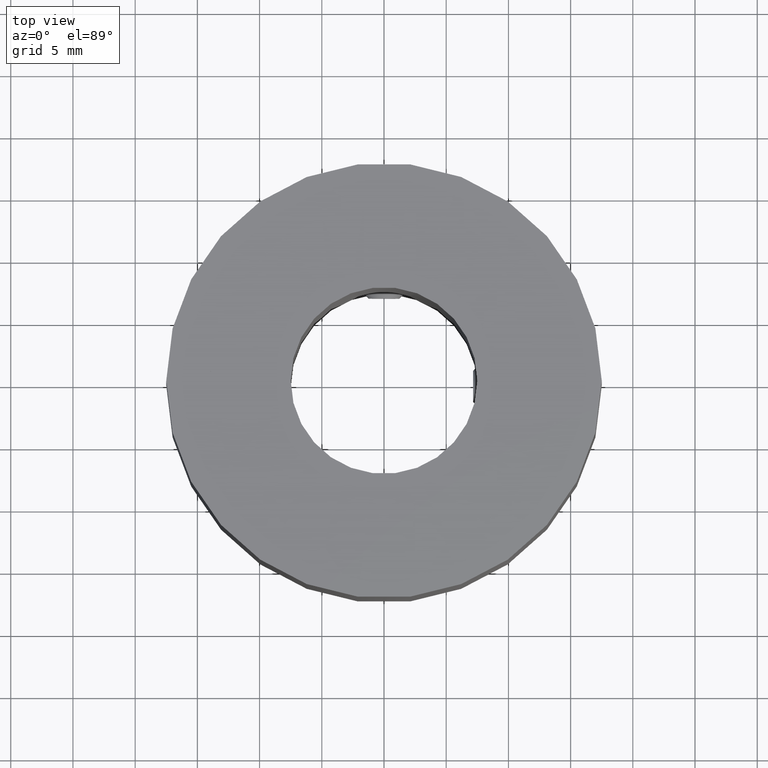
[diagram: clean part render]
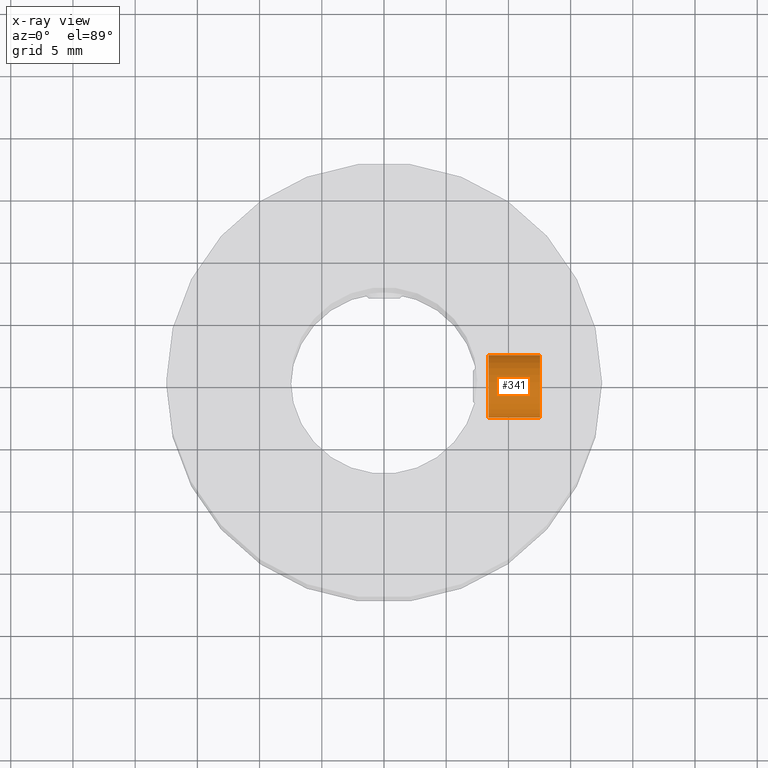
[diagram: x-ray — body ghosted, one internal face saturated and labeled with its STEP entity id]
A machine part, top view, then the same camera in x-ray: the body is ghosted and one INTERNAL B-rep face — a face not visible from any outside direction — is saturated and labeled: STEP entity #341.
In plain terms, the highlighted cylindrical surface (bore or boss wall) has radius 2.5 mm, axis along (1, 0, 0).
Its self-contained STEP definition (entity closure, byte-faithful):
#341 = ADVANCED_FACE( '', ( #417, #418 ), #419, .T. );
#417 = FACE_OUTER_BOUND( '', #510, .T. );
#418 = FACE_OUTER_BOUND( '', #511, .T. );
#419 = CYLINDRICAL_SURFACE( '', #512, 2.50000000000000 );
#510 = EDGE_LOOP( '', ( #672 ) );
#511 = EDGE_LOOP( '', ( #673 ) );
#512 = AXIS2_PLACEMENT_3D( '', #674, #675, #676 );
#672 = ORIENTED_EDGE( '', *, *, #772, .T. );
#673 = ORIENTED_EDGE( '', *, *, #793, .F. );
#674 = CARTESIAN_POINT( '', ( 7.16205955850783, 0.000000000000000, -27.0000000000000 ) );
#675 = DIRECTION( '', ( 1.00000000000000, 0.000000000000000, -0.000000000000000 ) );
#676 = DIRECTION( '', ( 0.000000000000000, -1.00000000000000, 0.000000000000000 ) );
#772 = EDGE_CURVE( '', #844, #844, #845, .T. );
#793 = EDGE_CURVE( '', #878, #878, #879, .T. );
#844 = VERTEX_POINT( '', #1168 );
#845 = CIRCLE( '', #1169, 2.50000000000000 );
#878 = VERTEX_POINT( '', #1244 );
#879 = CIRCLE( '', #1245, 2.50000000000000 );
#1168 = CARTESIAN_POINT( '', ( 12.5370595585078, -2.50000000000000, -27.0000000000000 ) );
#1169 = AXIS2_PLACEMENT_3D( '', #1354, #1355, #1356 );
#1244 = CARTESIAN_POINT( '', ( 8.41205955850783, -2.50000000000000, -27.0000000000000 ) );
#1245 = AXIS2_PLACEMENT_3D( '', #1372, #1373, #1374 );
#1354 = CARTESIAN_POINT( '', ( 12.5370595585078, 0.000000000000000, -27.0000000000000 ) );
#1355 = DIRECTION( '', ( -1.00000000000000, -0.000000000000000, 0.000000000000000 ) );
#1356 = DIRECTION( '', ( 0.000000000000000, -1.00000000000000, 0.000000000000000 ) );
#1372 = CARTESIAN_POINT( '', ( 8.41205955850783, 0.000000000000000, -27.0000000000000 ) );
#1373 = DIRECTION( '', ( -1.00000000000000, -0.000000000000000, 0.000000000000000 ) );
#1374 = DIRECTION( '', ( 0.000000000000000, -1.00000000000000, 0.000000000000000 ) );